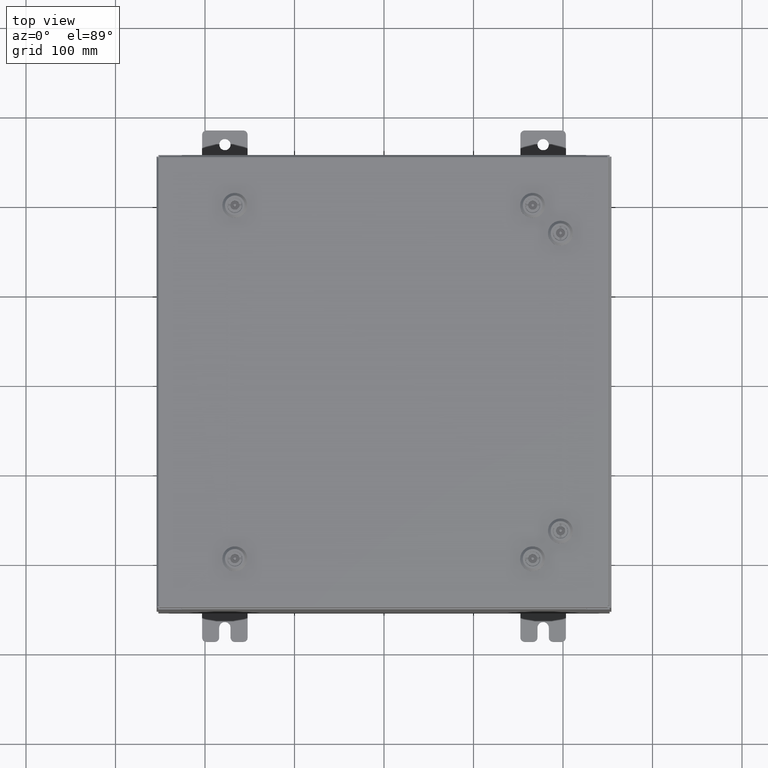
[diagram: clean part render]
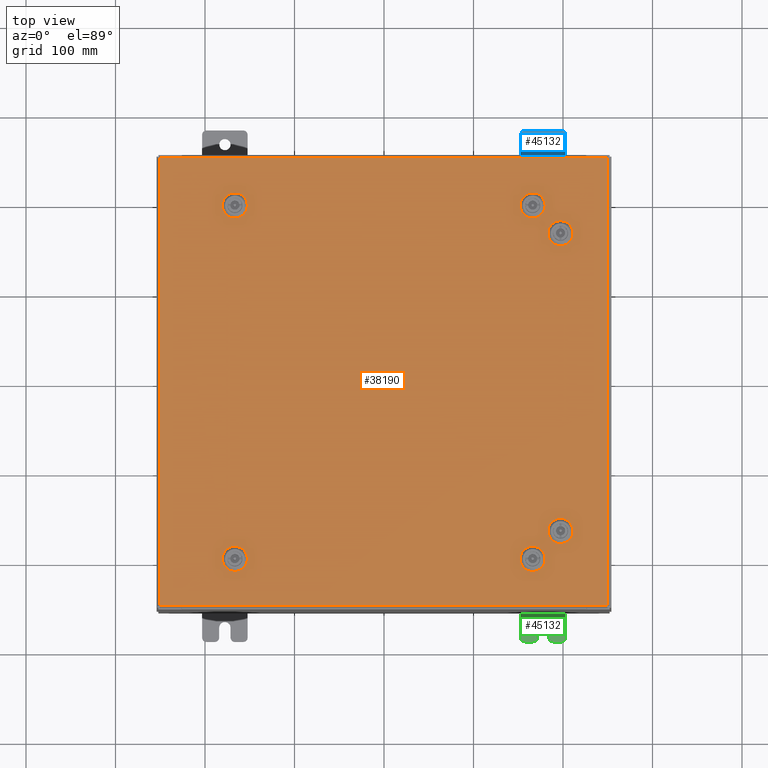
[diagram: same view with three faces highlighted in distinct colors, each labeled with its STEP entity id]
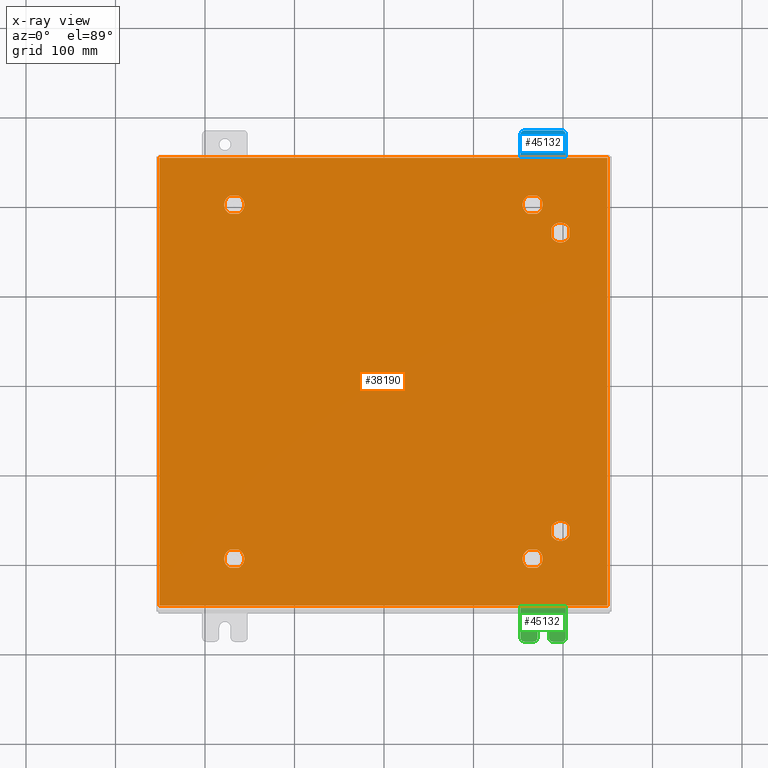
[diagram: x-ray of the same camera — body ghosted, the three highlighted faces saturated]
A machine part, top view with three faces highlighted in distinct colors.
The next image is the same camera in x-ray (body ghosted, the three faces saturated) — at least one of them is partly hidden behind the body in this view.
Their STEP definitions:

[orange] entity #38190 — the highlighted planar face has unit normal (0, 0, -1).
#312 = LINE ( 'NONE', #14345, #50911 ) ;
#433 = CARTESIAN_POINT ( 'NONE',  ( 7.392800000000014500, -6.761952375267901200, -2.443558770110843000E-013 ) ) ;
#515 = ORIENTED_EDGE ( 'NONE', *, *, #34514, .F. ) ;
#563 = VERTEX_POINT ( 'NONE', #23759 ) ;
#636 = CARTESIAN_POINT ( 'NONE',  ( -6.562499999999986700, 7.787799999999989200, 0.0000000000000000000 ) ) ;
#925 = AXIS2_PLACEMENT_3D ( 'NONE', #636, #34896, #5535 ) ;
#1241 = EDGE_CURVE ( 'NONE', #11794, #44368, #56490, .T. ) ;
#1665 = DIRECTION ( 'NONE',  ( 0.0000000000000000000, 0.0000000000000000000, 1.000000000000000000 ) ) ;
#1764 = DIRECTION ( 'NONE',  ( -1.000000000000000000, 0.0000000000000000000, 6.982962677686261200E-015 ) ) ;
#2525 = VERTEX_POINT ( 'NONE', #10235 ) ;
#2775 = DIRECTION ( 'NONE',  ( 0.0000000000000000000, 1.000000000000000000, 6.982962677686269100E-015 ) ) ;
#2948 = EDGE_CURVE ( 'NONE', #40379, #20756, #14958, .T. ) ;
#3531 = LINE ( 'NONE', #6863, #15046 ) ;
#3658 = VERTEX_POINT ( 'NONE', #38533 ) ;
#4139 = CARTESIAN_POINT ( 'NONE',  ( 8.182800000000003800, -6.363047624732128100, -2.415703400261412200E-013 ) ) ;
#4445 = AXIS2_PLACEMENT_3D ( 'NONE', #61533, #32100, #2775 ) ;
#4593 = DIRECTION ( 'NONE',  ( 1.000000000000000000, 0.0000000000000000000, 6.982962677686261200E-015 ) ) ;
#4703 = CARTESIAN_POINT ( 'NONE',  ( 6.562499999999985800, -7.787799999999989200, -2.326024867937287700E-014 ) ) ;
#4927 = ORIENTED_EDGE ( 'NONE', *, *, #11211, .F. ) ;
#5124 = DIRECTION ( 'NONE',  ( -6.982962677686266700E-015, -6.982962677686266700E-015, 1.000000000000000000 ) ) ;
#5531 = EDGE_CURVE ( 'NONE', #11279, #33296, #43894, .T. ) ;
#5535 = DIRECTION ( 'NONE',  ( 1.000000000000000000, 0.0000000000000000000, 0.0000000000000000000 ) ) ;
#5983 = CARTESIAN_POINT ( 'NONE',  ( 7.004999999999983900, -7.787799999999989200, -2.017028769449672300E-014 ) ) ;
#6052 = CARTESIAN_POINT ( 'NONE',  ( 8.182800000000000300, -6.761952375267896700, -2.443558770110843000E-013 ) ) ;
#6342 = VECTOR ( 'NONE', #50666, 39.37007874015748100 ) ;
#6559 = EDGE_CURVE ( 'NONE', #39794, #3658, #56918, .T. ) ;
#6639 = CARTESIAN_POINT ( 'NONE',  ( -6.119999999999989400, 7.787799999999989200, 0.0000000000000000000 ) ) ;
#6768 = DIRECTION ( 'NONE',  ( 0.0000000000000000000, 0.0000000000000000000, 1.000000000000000000 ) ) ;
#6863 = CARTESIAN_POINT ( 'NONE',  ( -6.363047624732095300, 8.182799999999980800, 0.0000000000000000000 ) ) ;
#6993 = DIRECTION ( 'NONE',  ( -1.000000000000000000, -2.739348669069625000E-015, -6.982962677686314800E-015 ) ) ;
#7228 = DIRECTION ( 'NONE',  ( -8.218046007208852600E-015, 1.000000000000000000, -0.0000000000000000000 ) ) ;
#7379 = VECTOR ( 'NONE', #18144, 39.37007874015748100 ) ;
#7712 = VERTEX_POINT ( 'NONE', #21927 ) ;
#7798 = VERTEX_POINT ( 'NONE', #52273 ) ;
#7856 = CARTESIAN_POINT ( 'NONE',  ( 6.761952375267867400, -8.182799999999986100, -2.462575044458744400E-014 ) ) ;
#7995 = CARTESIAN_POINT ( 'NONE',  ( 6.562499999999985800, 7.787799999999989200, -2.637953810749545800E-014 ) ) ;
#8351 = EDGE_CURVE ( 'NONE', #57647, #2525, #32832, .T. ) ;
#8514 = VECTOR ( 'NONE', #6993, 39.37007874015748100 ) ;
#8799 = FACE_OUTER_BOUND ( 'NONE', #46834, .T. ) ;
#8909 = ORIENTED_EDGE ( 'NONE', *, *, #53296, .F. ) ;
#9070 = CARTESIAN_POINT ( 'NONE',  ( 6.363047624732101500, -7.392799999999993200, -2.189474691415834200E-014 ) ) ;
#9369 = ORIENTED_EDGE ( 'NONE', *, *, #58613, .F. ) ;
#9435 = ORIENTED_EDGE ( 'NONE', *, *, #56630, .F. ) ;
#9652 = DIRECTION ( 'NONE',  ( 1.000000000000000000, 0.0000000000000000000, 6.982962677686260400E-015 ) ) ;
#9745 = CIRCLE ( 'NONE', #54666, 0.4424999999999972800 ) ;
#10018 = DIRECTION ( 'NONE',  ( 0.0000000000000000000, 0.0000000000000000000, -1.000000000000000000 ) ) ;
#10235 = CARTESIAN_POINT ( 'NONE',  ( 6.761952375267869200, 7.392799999999992300, -2.777230659996697100E-014 ) ) ;
#10356 = FACE_BOUND ( 'NONE', #49026, .T. ) ;
#10429 = AXIS2_PLACEMENT_3D ( 'NONE', #34463, #5124, #39413 ) ;
#10431 = EDGE_CURVE ( 'NONE', #55814, #53143, #52645, .T. ) ;
#10532 = ORIENTED_EDGE ( 'NONE', *, *, #40069, .F. ) ;
#10625 = CARTESIAN_POINT ( 'NONE',  ( 8.182800000000000300, 6.761952375267896700, 0.0000000000000000000 ) ) ;
#11211 = EDGE_CURVE ( 'NONE', #51958, #57829, #55720, .T. ) ;
#11279 = VERTEX_POINT ( 'NONE', #36217 ) ;
#11282 = CARTESIAN_POINT ( 'NONE',  ( -9.849799999999996600, -9.849800000000001900, -2.048885995248197400E-016 ) ) ;
#11295 = EDGE_CURVE ( 'NONE', #30780, #17029, #3531, .T. ) ;
#11411 = CIRCLE ( 'NONE', #42530, 0.4424999999999983400 ) ;
#11682 = DIRECTION ( 'NONE',  ( -0.0000000000000000000, -6.982962677686266700E-015, 1.000000000000000000 ) ) ;
#11794 = VERTEX_POINT ( 'NONE', #44520 ) ;
#12131 = DIRECTION ( 'NONE',  ( 1.000000000000000000, -0.0000000000000000000, -0.0000000000000000000 ) ) ;
#12914 = DIRECTION ( 'NONE',  ( -1.000000000000000000, 0.0000000000000000000, 6.982962677686260400E-015 ) ) ;
#14147 = VERTEX_POINT ( 'NONE', #29148 ) ;
#14149 = EDGE_CURVE ( 'NONE', #20756, #62928, #53292, .T. ) ;
#14345 = CARTESIAN_POINT ( 'NONE',  ( -9.849800000000001900, 9.849799999999996600, -2.441589144337435400E-015 ) ) ;
#14607 = AXIS2_PLACEMENT_3D ( 'NONE', #58661, #29247, #63579 ) ;
#14613 = DIRECTION ( 'NONE',  ( 0.0000000000000000000, 1.000000000000000000, 0.0000000000000000000 ) ) ;
#14958 = LINE ( 'NONE', #11282, #37932 ) ;
#15046 = VECTOR ( 'NONE', #46089, 39.37007874015748100 ) ;
#15791 = VECTOR ( 'NONE', #33704, 39.37007874015748100 ) ;
#15868 = AXIS2_PLACEMENT_3D ( 'NONE', #4703, #38974, #9652 ) ;
#15934 = CIRCLE ( 'NONE', #52567, 0.4424999999999983400 ) ;
#16446 = CIRCLE ( 'NONE', #14607, 0.4424999999999972800 ) ;
#16607 = DIRECTION ( 'NONE',  ( -1.000000000000000000, -1.369674334534793800E-014, 6.982962677686269100E-015 ) ) ;
#16842 = DIRECTION ( 'NONE',  ( 0.0000000000000000000, 1.000000000000000000, 6.982962677686287200E-015 ) ) ;
#17029 = VERTEX_POINT ( 'NONE', #55035 ) ;
#17062 = CARTESIAN_POINT ( 'NONE',  ( 6.363047624732101500, 7.392799999999993200, -2.498676961502394800E-014 ) ) ;
#17111 = CARTESIAN_POINT ( 'NONE',  ( -6.363047624732101500, 7.392799999999993200, 0.0000000000000000000 ) ) ;
#17128 = CARTESIAN_POINT ( 'NONE',  ( 8.182800000000000300, 6.761952375267896700, 0.0000000000000000000 ) ) ;
#17473 = ORIENTED_EDGE ( 'NONE', *, *, #48348, .F. ) ;
#17834 = VERTEX_POINT ( 'NONE', #61632 ) ;
#17894 = ORIENTED_EDGE ( 'NONE', *, *, #51928, .F. ) ;
#17922 = CARTESIAN_POINT ( 'NONE',  ( -6.562499999999986700, -7.787799999999991800, -4.963978678686834100E-014 ) ) ;
#18144 = DIRECTION ( 'NONE',  ( -1.000000000000000000, 2.739348669069610000E-015, 1.946424297521510000E-029 ) ) ;
#18161 = ORIENTED_EDGE ( 'NONE', *, *, #2948, .T. ) ;
#18621 = AXIS2_PLACEMENT_3D ( 'NONE', #58004, #28594, #62925 ) ;
#18724 = VERTEX_POINT ( 'NONE', #54956 ) ;
#18742 = CARTESIAN_POINT ( 'NONE',  ( -6.562499999999986700, -7.787799999999991800, -4.963978678686834100E-014 ) ) ;
#19216 = CIRCLE ( 'NONE', #4445, 0.4424999999999972800 ) ;
#19508 = AXIS2_PLACEMENT_3D ( 'NONE', #36117, #6768, #41035 ) ;
#19522 = EDGE_CURVE ( 'NONE', #21173, #49059, #48373, .T. ) ;
#19819 = EDGE_LOOP ( 'NONE', ( #30237, #22624, #44133, #37982, #58016 ) ) ;
#19850 = VECTOR ( 'NONE', #51290, 39.37007874015748100 ) ;
#19917 = EDGE_LOOP ( 'NONE', ( #8909, #515, #55758, #25034, #35797 ) ) ;
#20017 = DIRECTION ( 'NONE',  ( -0.0000000000000000000, -6.982962677686266700E-015, 1.000000000000000000 ) ) ;
#20756 = VERTEX_POINT ( 'NONE', #61468 ) ;
#21173 = VERTEX_POINT ( 'NONE', #5983 ) ;
#21927 = CARTESIAN_POINT ( 'NONE',  ( 7.392800000000010000, -6.363047624732128100, 0.0000000000000000000 ) ) ;
#22018 = CARTESIAN_POINT ( 'NONE',  ( -9.849799999999996600, -9.849800000000001900, -2.048885995248197400E-016 ) ) ;
#22206 = LINE ( 'NONE', #54225, #55130 ) ;
#22402 = CARTESIAN_POINT ( 'NONE',  ( 7.787800000000006100, -6.562500000000010700, -2.429631085186127400E-013 ) ) ;
#22566 = ORIENTED_EDGE ( 'NONE', *, *, #19522, .F. ) ;
#22624 = ORIENTED_EDGE ( 'NONE', *, *, #56620, .F. ) ;
#22686 = VERTEX_POINT ( 'NONE', #6639 ) ;
#22832 = DIRECTION ( 'NONE',  ( 0.0000000000000000000, 1.000000000000000000, 6.982962677686269100E-015 ) ) ;
#23242 = CIRCLE ( 'NONE', #47101, 0.4424999999999972800 ) ;
#23336 = ORIENTED_EDGE ( 'NONE', *, *, #39672, .F. ) ;
#23398 = FACE_BOUND ( 'NONE', #19917, .T. ) ;
#23660 = DIRECTION ( 'NONE',  ( 0.0000000000000000000, 1.000000000000000000, 6.982962677686270700E-015 ) ) ;
#23759 = CARTESIAN_POINT ( 'NONE',  ( -9.849800000000001900, 9.849799999999996600, -2.441589144337435400E-015 ) ) ;
#23769 = CARTESIAN_POINT ( 'NONE',  ( 9.849799999999994800, 9.849799999999996600, -2.048885995248197400E-016 ) ) ;
#23882 = DIRECTION ( 'NONE',  ( 0.0000000000000000000, 0.0000000000000000000, 1.000000000000000000 ) ) ;
#25034 = ORIENTED_EDGE ( 'NONE', *, *, #8351, .F. ) ;
#25181 = AXIS2_PLACEMENT_3D ( 'NONE', #63342, #33934, #4593 ) ;
#25502 = EDGE_LOOP ( 'NONE', ( #9369, #55382, #46212, #37933 ) ) ;
#25791 = EDGE_CURVE ( 'NONE', #563, #40379, #312, .T. ) ;
#25939 = CARTESIAN_POINT ( 'NONE',  ( 6.363047624732094400, -8.182799999999980800, -2.741128742953046100E-014 ) ) ;
#26159 = CARTESIAN_POINT ( 'NONE',  ( 6.363047624732101500, 7.392799999999993200, -2.498676961502394800E-014 ) ) ;
#26239 = CARTESIAN_POINT ( 'NONE',  ( 7.392800000000008300, 6.363047624732128100, 0.0000000000000000000 ) ) ;
#26488 = FACE_BOUND ( 'NONE', #41420, .T. ) ;
#26629 = VECTOR ( 'NONE', #58345, 39.37007874015748100 ) ;
#27404 = VECTOR ( 'NONE', #54093, 39.37007874015748100 ) ;
#28254 = VERTEX_POINT ( 'NONE', #38739 ) ;
#28332 = LINE ( 'NONE', #60955, #51382 ) ;
#28594 = DIRECTION ( 'NONE',  ( 6.982962677686266700E-015, -0.0000000000000000000, 1.000000000000000000 ) ) ;
#29148 = CARTESIAN_POINT ( 'NONE',  ( 6.761952375267867400, 8.182799999999986100, 0.0000000000000000000 ) ) ;
#29247 = DIRECTION ( 'NONE',  ( 0.0000000000000000000, 0.0000000000000000000, 1.000000000000000000 ) ) ;
#29473 = CARTESIAN_POINT ( 'NONE',  ( 0.0000000000000000000, 0.0000000000000000000, 0.0000000000000000000 ) ) ;
#30220 = CARTESIAN_POINT ( 'NONE',  ( -6.363047624732101500, 7.392799999999993200, 0.0000000000000000000 ) ) ;
#30237 = ORIENTED_EDGE ( 'NONE', *, *, #10431, .F. ) ;
#30313 = CIRCLE ( 'NONE', #25181, 0.4424999999999983400 ) ;
#30780 = VERTEX_POINT ( 'NONE', #34956 ) ;
#30969 = CARTESIAN_POINT ( 'NONE',  ( -6.562499999999986700, 7.787799999999989200, 0.0000000000000000000 ) ) ;
#31063 = DIRECTION ( 'NONE',  ( 6.982962677686266700E-015, -0.0000000000000000000, 1.000000000000000000 ) ) ;
#31129 = CIRCLE ( 'NONE', #60903, 0.4424999999999983400 ) ;
#31857 = ORIENTED_EDGE ( 'NONE', *, *, #1241, .F. ) ;
#31917 = VECTOR ( 'NONE', #7228, 39.37007874015748100 ) ;
#32100 = DIRECTION ( 'NONE',  ( -0.0000000000000000000, -6.982962677686266700E-015, 1.000000000000000000 ) ) ;
#32832 = LINE ( 'NONE', #17062, #19850 ) ;
#33296 = VERTEX_POINT ( 'NONE', #17111 ) ;
#33381 = CIRCLE ( 'NONE', #18621, 0.4424999999999983400 ) ;
#33704 = DIRECTION ( 'NONE',  ( 1.095739467627835000E-014, -1.000000000000000000, -6.982962677686248600E-015 ) ) ;
#33847 = CARTESIAN_POINT ( 'NONE',  ( -6.363047624732095300, -8.182799999999984300, -5.239805704455435800E-014 ) ) ;
#33934 = DIRECTION ( 'NONE',  ( -6.982962677686266700E-015, -6.982962677686266700E-015, 1.000000000000000000 ) ) ;
#34211 = ORIENTED_EDGE ( 'NONE', *, *, #41305, .F. ) ;
#34463 = CARTESIAN_POINT ( 'NONE',  ( 6.562499999999985800, -7.787799999999989200, -2.326024867937287700E-014 ) ) ;
#34514 = EDGE_CURVE ( 'NONE', #7798, #14147, #11411, .T. ) ;
#34549 = CIRCLE ( 'NONE', #19508, 0.4424999999999983400 ) ;
#34870 = FACE_BOUND ( 'NONE', #57530, .T. ) ;
#34896 = DIRECTION ( 'NONE',  ( 0.0000000000000000000, 0.0000000000000000000, 1.000000000000000000 ) ) ;
#34945 = VECTOR ( 'NONE', #35417, 39.37007874015748100 ) ;
#34956 = CARTESIAN_POINT ( 'NONE',  ( -6.363047624732095300, 8.182799999999980800, 0.0000000000000000000 ) ) ;
#35293 = VERTEX_POINT ( 'NONE', #26239 ) ;
#35417 = DIRECTION ( 'NONE',  ( 8.218046007208852600E-015, 1.000000000000000000, 6.982962677686325100E-015 ) ) ;
#35797 = ORIENTED_EDGE ( 'NONE', *, *, #56971, .F. ) ;
#35808 = AXIS2_PLACEMENT_3D ( 'NONE', #22402, #11682, #16842 ) ;
#35918 = DIRECTION ( 'NONE',  ( 1.000000000000000000, 0.0000000000000000000, 0.0000000000000000000 ) ) ;
#36117 = CARTESIAN_POINT ( 'NONE',  ( 7.787800000000005200, 6.562500000000010700, 0.0000000000000000000 ) ) ;
#36217 = CARTESIAN_POINT ( 'NONE',  ( -6.761952375267871900, 7.392799999999992300, 0.0000000000000000000 ) ) ;
#37838 = AXIS2_PLACEMENT_3D ( 'NONE', #53211, #23882, #58170 ) ;
#37932 = VECTOR ( 'NONE', #12131, 39.37007874015748100 ) ;
#37933 = ORIENTED_EDGE ( 'NONE', *, *, #6559, .F. ) ;
#37982 = ORIENTED_EDGE ( 'NONE', *, *, #43901, .F. ) ;
#38190 = ADVANCED_FACE ( 'NONE', ( #61009, #34870, #26488, #47900, #23398, #10356, #8799 ), #39344, .F. ) ;
#38438 = CARTESIAN_POINT ( 'NONE',  ( 7.392800000000014500, -6.761952375267901200, -2.443558770110843000E-013 ) ) ;
#38533 = CARTESIAN_POINT ( 'NONE',  ( 8.182800000000000300, -6.761952375267896700, -2.443558770110843000E-013 ) ) ;
#38739 = CARTESIAN_POINT ( 'NONE',  ( -6.363047624732101500, -7.392799999999995800, -4.688151652918229300E-014 ) ) ;
#38853 = VERTEX_POINT ( 'NONE', #9070 ) ;
#38974 = DIRECTION ( 'NONE',  ( -6.982962677686266700E-015, -6.982962677686266700E-015, 1.000000000000000000 ) ) ;
#39344 = PLANE ( 'NONE',  #53554 ) ;
#39413 = DIRECTION ( 'NONE',  ( 1.000000000000000000, 0.0000000000000000000, 6.982962677686261200E-015 ) ) ;
#39672 = EDGE_CURVE ( 'NONE', #38853, #51958, #51684, .T. ) ;
#39794 = VERTEX_POINT ( 'NONE', #433 ) ;
#40069 = EDGE_CURVE ( 'NONE', #22686, #30780, #16446, .T. ) ;
#40170 = CARTESIAN_POINT ( 'NONE',  ( 7.392800000000011800, 6.761952375267901200, 0.0000000000000000000 ) ) ;
#40252 = VECTOR ( 'NONE', #14613, 39.37007874015748100 ) ;
#40379 = VERTEX_POINT ( 'NONE', #22018 ) ;
#41035 = DIRECTION ( 'NONE',  ( 1.000000000000000000, 0.0000000000000000000, 0.0000000000000000000 ) ) ;
#41246 = CARTESIAN_POINT ( 'NONE',  ( 6.363047624732101500, -7.392799999999993200, -2.189474691415834200E-014 ) ) ;
#41305 = EDGE_CURVE ( 'NONE', #33296, #22686, #23242, .T. ) ;
#41420 = EDGE_LOOP ( 'NONE', ( #57780, #22566, #53951, #4927, #23336 ) ) ;
#41694 = VERTEX_POINT ( 'NONE', #4139 ) ;
#41971 = CIRCLE ( 'NONE', #55919, 0.4424999999999972800 ) ;
#42268 = DIRECTION ( 'NONE',  ( 6.982962677686266700E-015, -0.0000000000000000000, 1.000000000000000000 ) ) ;
#42530 = AXIS2_PLACEMENT_3D ( 'NONE', #60481, #31063, #1764 ) ;
#42648 = VECTOR ( 'NONE', #60251, 39.37007874015748100 ) ;
#42843 = ORIENTED_EDGE ( 'NONE', *, *, #45948, .T. ) ;
#43894 = LINE ( 'NONE', #30220, #6342 ) ;
#43901 = EDGE_CURVE ( 'NONE', #17834, #28254, #19216, .T. ) ;
#43952 = CARTESIAN_POINT ( 'NONE',  ( 9.849799999999996600, -9.849800000000001900, -2.048885995248197400E-016 ) ) ;
#44133 = ORIENTED_EDGE ( 'NONE', *, *, #58396, .F. ) ;
#44149 = CIRCLE ( 'NONE', #37838, 0.4424999999999972800 ) ;
#44262 = DIRECTION ( 'NONE',  ( -1.000000000000000000, 0.0000000000000000000, -0.0000000000000000000 ) ) ;
#44368 = VERTEX_POINT ( 'NONE', #10625 ) ;
#44422 = VERTEX_POINT ( 'NONE', #40170 ) ;
#44520 = CARTESIAN_POINT ( 'NONE',  ( 8.182800000000003800, 6.363047624732128100, 0.0000000000000000000 ) ) ;
#45948 = EDGE_CURVE ( 'NONE', #62928, #563, #22206, .T. ) ;
#46089 = DIRECTION ( 'NONE',  ( -1.000000000000000000, 1.369674334534793800E-014, 0.0000000000000000000 ) ) ;
#46109 = LINE ( 'NONE', #41246, #8514 ) ;
#46212 = ORIENTED_EDGE ( 'NONE', *, *, #58338, .F. ) ;
#46834 = EDGE_LOOP ( 'NONE', ( #18161, #51890, #42843, #62856 ) ) ;
#47101 = AXIS2_PLACEMENT_3D ( 'NONE', #30969, #1665, #35918 ) ;
#47474 = CARTESIAN_POINT ( 'NONE',  ( -6.363047624732101500, -7.392799999999995800, -4.688151652918229300E-014 ) ) ;
#47900 = FACE_BOUND ( 'NONE', #19819, .T. ) ;
#48348 = EDGE_CURVE ( 'NONE', #17029, #11279, #58831, .T. ) ;
#48373 = CIRCLE ( 'NONE', #10429, 0.4424999999999983400 ) ;
#49026 = EDGE_LOOP ( 'NONE', ( #58083, #17473, #56481, #10532, #34211 ) ) ;
#49059 = VERTEX_POINT ( 'NONE', #59218 ) ;
#49142 = CARTESIAN_POINT ( 'NONE',  ( 7.392800000000011800, 6.761952375267901200, 0.0000000000000000000 ) ) ;
#49332 = CARTESIAN_POINT ( 'NONE',  ( 7.787800000000006100, -6.562500000000010700, -2.429631085186127400E-013 ) ) ;
#50666 = DIRECTION ( 'NONE',  ( 1.000000000000000000, 2.739348669069610000E-015, -0.0000000000000000000 ) ) ;
#50874 = CARTESIAN_POINT ( 'NONE',  ( -6.761952375267868300, -8.182799999999989600, 0.0000000000000000000 ) ) ;
#50911 = VECTOR ( 'NONE', #58505, 39.37007874015748100 ) ;
#51290 = DIRECTION ( 'NONE',  ( 1.000000000000000000, -2.739348669069625000E-015, -6.982962677686286400E-015 ) ) ;
#51382 = VECTOR ( 'NONE', #16607, 39.37007874015748100 ) ;
#51684 = CIRCLE ( 'NONE', #15868, 0.4424999999999972800 ) ;
#51890 = ORIENTED_EDGE ( 'NONE', *, *, #14149, .T. ) ;
#51928 = EDGE_CURVE ( 'NONE', #35293, #11794, #34549, .T. ) ;
#51958 = VERTEX_POINT ( 'NONE', #55854 ) ;
#51973 = EDGE_CURVE ( 'NONE', #49059, #38853, #46109, .T. ) ;
#52146 = DIRECTION ( 'NONE',  ( -0.0000000000000000000, -6.982962677686266700E-015, 1.000000000000000000 ) ) ;
#52273 = CARTESIAN_POINT ( 'NONE',  ( 7.004999999999983900, 7.787799999999989200, -2.946949909237161900E-014 ) ) ;
#52567 = AXIS2_PLACEMENT_3D ( 'NONE', #18742, #52997, #23660 ) ;
#52645 = LINE ( 'NONE', #33847, #26629 ) ;
#52997 = DIRECTION ( 'NONE',  ( -0.0000000000000000000, -6.982962677686266700E-015, 1.000000000000000000 ) ) ;
#53143 = VERTEX_POINT ( 'NONE', #59865 ) ;
#53211 = CARTESIAN_POINT ( 'NONE',  ( 7.787800000000005200, 6.562500000000010700, 0.0000000000000000000 ) ) ;
#53292 = LINE ( 'NONE', #43952, #40252 ) ;
#53296 = EDGE_CURVE ( 'NONE', #14147, #62266, #28332, .T. ) ;
#53443 = LINE ( 'NONE', #49142, #27404 ) ;
#53554 = AXIS2_PLACEMENT_3D ( 'NONE', #29473, #10018, #44262 ) ;
#53951 = ORIENTED_EDGE ( 'NONE', *, *, #60097, .F. ) ;
#54093 = DIRECTION ( 'NONE',  ( -8.218046007208762600E-015, -1.000000000000000000, 0.0000000000000000000 ) ) ;
#54225 = CARTESIAN_POINT ( 'NONE',  ( 9.849799999999994800, 9.849799999999996600, -2.048885995248197400E-016 ) ) ;
#54284 = DIRECTION ( 'NONE',  ( 0.0000000000000000000, 1.000000000000000000, 6.982962677686270700E-015 ) ) ;
#54666 = AXIS2_PLACEMENT_3D ( 'NONE', #7995, #42268, #12914 ) ;
#54897 = LINE ( 'NONE', #38438, #15791 ) ;
#54956 = CARTESIAN_POINT ( 'NONE',  ( -6.761952375267871900, -7.392799999999994000, -4.688151652918228700E-014 ) ) ;
#55035 = CARTESIAN_POINT ( 'NONE',  ( -6.761952375267868300, 8.182799999999986100, 0.0000000000000000000 ) ) ;
#55130 = VECTOR ( 'NONE', #59179, 39.37007874015748100 ) ;
#55382 = ORIENTED_EDGE ( 'NONE', *, *, #58147, .F. ) ;
#55720 = LINE ( 'NONE', #25939, #42648 ) ;
#55758 = ORIENTED_EDGE ( 'NONE', *, *, #60003, .F. ) ;
#55814 = VERTEX_POINT ( 'NONE', #50874 ) ;
#55854 = CARTESIAN_POINT ( 'NONE',  ( 6.363047624732094400, -8.182799999999980800, -2.741128742953046100E-014 ) ) ;
#55919 = AXIS2_PLACEMENT_3D ( 'NONE', #17922, #52146, #22832 ) ;
#56481 = ORIENTED_EDGE ( 'NONE', *, *, #11295, .F. ) ;
#56490 = LINE ( 'NONE', #17128, #31917 ) ;
#56601 = EDGE_CURVE ( 'NONE', #53143, #17834, #41971, .T. ) ;
#56620 = EDGE_CURVE ( 'NONE', #18724, #55814, #15934, .T. ) ;
#56630 = EDGE_CURVE ( 'NONE', #44422, #35293, #53443, .T. ) ;
#56918 = CIRCLE ( 'NONE', #35808, 0.4424999999999972800 ) ;
#56971 = EDGE_CURVE ( 'NONE', #62266, #57647, #9745, .T. ) ;
#57157 = ORIENTED_EDGE ( 'NONE', *, *, #58019, .F. ) ;
#57262 = CARTESIAN_POINT ( 'NONE',  ( 6.363047624732094400, 8.182799999999980800, -2.498676961502389700E-014 ) ) ;
#57530 = EDGE_LOOP ( 'NONE', ( #31857, #17894, #9435, #57157 ) ) ;
#57647 = VERTEX_POINT ( 'NONE', #26159 ) ;
#57780 = ORIENTED_EDGE ( 'NONE', *, *, #51973, .F. ) ;
#57829 = VERTEX_POINT ( 'NONE', #7856 ) ;
#58004 = CARTESIAN_POINT ( 'NONE',  ( 6.562499999999985800, 7.787799999999989200, -2.637953810749545800E-014 ) ) ;
#58016 = ORIENTED_EDGE ( 'NONE', *, *, #56601, .F. ) ;
#58019 = EDGE_CURVE ( 'NONE', #44368, #44422, #44149, .T. ) ;
#58083 = ORIENTED_EDGE ( 'NONE', *, *, #5531, .F. ) ;
#58147 = EDGE_CURVE ( 'NONE', #41694, #7712, #31129, .T. ) ;
#58170 = DIRECTION ( 'NONE',  ( 1.000000000000000000, 0.0000000000000000000, 0.0000000000000000000 ) ) ;
#58338 = EDGE_CURVE ( 'NONE', #3658, #41694, #61081, .T. ) ;
#58345 = DIRECTION ( 'NONE',  ( 1.000000000000000000, 1.369674334534793800E-014, 9.732121487607470400E-029 ) ) ;
#58396 = EDGE_CURVE ( 'NONE', #28254, #18724, #59503, .T. ) ;
#58505 = DIRECTION ( 'NONE',  ( 0.0000000000000000000, -1.000000000000000000, 0.0000000000000000000 ) ) ;
#58613 = EDGE_CURVE ( 'NONE', #7712, #39794, #54897, .T. ) ;
#58661 = CARTESIAN_POINT ( 'NONE',  ( -6.562499999999986700, 7.787799999999989200, 0.0000000000000000000 ) ) ;
#58831 = CIRCLE ( 'NONE', #925, 0.4424999999999983400 ) ;
#59179 = DIRECTION ( 'NONE',  ( -1.000000000000000000, -0.0000000000000000000, -0.0000000000000000000 ) ) ;
#59218 = CARTESIAN_POINT ( 'NONE',  ( 6.761952375267869200, -7.392799999999992300, 0.0000000000000000000 ) ) ;
#59503 = LINE ( 'NONE', #47474, #7379 ) ;
#59865 = CARTESIAN_POINT ( 'NONE',  ( -6.363047624732095300, -8.182799999999984300, -5.239805704455435800E-014 ) ) ;
#60003 = EDGE_CURVE ( 'NONE', #2525, #7798, #33381, .T. ) ;
#60097 = EDGE_CURVE ( 'NONE', #57829, #21173, #30313, .T. ) ;
#60251 = DIRECTION ( 'NONE',  ( 1.000000000000000000, -1.369674334534793800E-014, 6.982962677686171300E-015 ) ) ;
#60481 = CARTESIAN_POINT ( 'NONE',  ( 6.562499999999985800, 7.787799999999989200, -2.637953810749545800E-014 ) ) ;
#60903 = AXIS2_PLACEMENT_3D ( 'NONE', #49332, #20017, #54284 ) ;
#60955 = CARTESIAN_POINT ( 'NONE',  ( 6.363047624732094400, 8.182799999999980800, -2.498676961502389700E-014 ) ) ;
#61009 = FACE_BOUND ( 'NONE', #25502, .T. ) ;
#61081 = LINE ( 'NONE', #6052, #34945 ) ;
#61468 = CARTESIAN_POINT ( 'NONE',  ( 9.849799999999996600, -9.849800000000001900, -2.048885995248197400E-016 ) ) ;
#61533 = CARTESIAN_POINT ( 'NONE',  ( -6.562499999999986700, -7.787799999999991800, -4.963978678686834100E-014 ) ) ;
#61632 = CARTESIAN_POINT ( 'NONE',  ( -6.119999999999989400, -7.787799999999991800, -4.963978678686834100E-014 ) ) ;
#62266 = VERTEX_POINT ( 'NONE', #57262 ) ;
#62856 = ORIENTED_EDGE ( 'NONE', *, *, #25791, .T. ) ;
#62925 = DIRECTION ( 'NONE',  ( -1.000000000000000000, 0.0000000000000000000, 6.982962677686261200E-015 ) ) ;
#62928 = VERTEX_POINT ( 'NONE', #23769 ) ;
#63342 = CARTESIAN_POINT ( 'NONE',  ( 6.562499999999985800, -7.787799999999989200, -2.326024867937287700E-014 ) ) ;
#63579 = DIRECTION ( 'NONE',  ( 1.000000000000000000, 0.0000000000000000000, 0.0000000000000000000 ) ) ;

[blue] entity #45132 — the highlighted planar face has unit normal (0, 0, 1).
#582 = LINE ( 'NONE', #5684, #26680 ) ;
#660 = ORIENTED_EDGE ( 'NONE', *, *, #15933, .F. ) ;
#927 = DIRECTION ( 'NONE',  ( 1.000000000000000000, 0.0000000000000000000, -0.0000000000000000000 ) ) ;
#1591 = VERTEX_POINT ( 'NONE', #61187 ) ;
#2158 = DIRECTION ( 'NONE',  ( 6.556435184794182400E-016, 1.000000000000000000, 0.0000000000000000000 ) ) ;
#2736 = EDGE_CURVE ( 'NONE', #20358, #1591, #57156, .T. ) ;
#3084 = EDGE_CURVE ( 'NONE', #11941, #46526, #61002, .T. ) ;
#3750 = ORIENTED_EDGE ( 'NONE', *, *, #44760, .T. ) ;
#4187 = EDGE_CURVE ( 'NONE', #36219, #38342, #30176, .T. ) ;
#4379 = CARTESIAN_POINT ( 'NONE',  ( 0.0000000000000000000, 1.249999999999994200, -1.000000000000010400 ) ) ;
#5429 = VERTEX_POINT ( 'NONE', #19488 ) ;
#5609 = CARTESIAN_POINT ( 'NONE',  ( 0.0000000000000000000, 0.0000000000000000000, 0.0000000000000000000 ) ) ;
#5684 = CARTESIAN_POINT ( 'NONE',  ( 4.780733988912460100E-016, -0.6249999999999993300, -0.2499999999999993900 ) ) ;
#5870 = CARTESIAN_POINT ( 'NONE',  ( 0.0000000000000000000, -1.250000000000003100, 0.4400000000000020000 ) ) ;
#6497 = DIRECTION ( 'NONE',  ( 1.000000000000000000, 0.0000000000000000000, -0.0000000000000000000 ) ) ;
#6809 = EDGE_CURVE ( 'NONE', #56834, #23097, #23786, .T. ) ;
#6860 = ORIENTED_EDGE ( 'NONE', *, *, #30997, .T. ) ;
#7862 = CARTESIAN_POINT ( 'NONE',  ( 0.0000000000000000000, -1.060000000000004100, -0.8100000000000050500 ) ) ;
#8036 = CARTESIAN_POINT ( 'NONE',  ( 4.039428427013647300E-016, 0.6249999999999992200, -9.783840404509077400E-018 ) ) ;
#8287 = AXIS2_PLACEMENT_3D ( 'NONE', #56460, #27102, #61410 ) ;
#9186 = VECTOR ( 'NONE', #22828, 39.37007874015748100 ) ;
#10315 = DIRECTION ( 'NONE',  ( 1.000000000000000000, 0.0000000000000000000, -0.0000000000000000000 ) ) ;
#10815 = CARTESIAN_POINT ( 'NONE',  ( 4.039428427013647300E-016, 0.6249999999999992200, -9.783840404509077400E-018 ) ) ;
#10928 = LINE ( 'NONE', #13450, #36994 ) ;
#11026 = CIRCLE ( 'NONE', #54267, 0.1900000000000011100 ) ;
#11368 = LINE ( 'NONE', #44679, #50445 ) ;
#11519 = VECTOR ( 'NONE', #32149, 39.37007874015748100 ) ;
#11557 = VERTEX_POINT ( 'NONE', #42396 ) ;
#11941 = VERTEX_POINT ( 'NONE', #12392 ) ;
#12392 = CARTESIAN_POINT ( 'NONE',  ( 4.168508244714285900E-016, 0.6249999999999992200, 0.2499999999999999200 ) ) ;
#12800 = AXIS2_PLACEMENT_3D ( 'NONE', #10815, #45069, #15764 ) ;
#13167 = AXIS2_PLACEMENT_3D ( 'NONE', #26065, #60374, #30958 ) ;
#13450 = CARTESIAN_POINT ( 'NONE',  ( 0.0000000000000000000, 1.249999999999997600, 0.9999999999999951200 ) ) ;
#14051 = DIRECTION ( 'NONE',  ( 0.0000000000000000000, 1.639108796198553600E-015, 1.000000000000000000 ) ) ;
#14120 = CARTESIAN_POINT ( 'NONE',  ( 0.0000000000000000000, -1.060000000000001200, 0.9999999999999988900 ) ) ;
#14599 = CARTESIAN_POINT ( 'NONE',  ( 0.0000000000000000000, 1.249999999999994700, -0.8100000000000092700 ) ) ;
#14879 = AXIS2_PLACEMENT_3D ( 'NONE', #14913, #34605, #39544 ) ;
#14913 = CARTESIAN_POINT ( 'NONE',  ( 0.0000000000000000000, -1.060000000000003400, -0.4400000000000005000 ) ) ;
#15340 = DIRECTION ( 'NONE',  ( 0.0000000000000000000, -1.639108796198553600E-015, -1.000000000000000000 ) ) ;
#15764 = DIRECTION ( 'NONE',  ( -5.163192708025533800E-017, 0.0000000000000000000, -1.000000000000000000 ) ) ;
#15933 = EDGE_CURVE ( 'NONE', #46526, #11941, #26413, .T. ) ;
#15976 = CARTESIAN_POINT ( 'NONE',  ( 1.928684683526964400E-016, -1.060000000000003400, -0.2499999999999994400 ) ) ;
#16119 = FACE_OUTER_BOUND ( 'NONE', #53799, .T. ) ;
#16210 = EDGE_CURVE ( 'NONE', #60360, #5429, #34791, .T. ) ;
#16421 = CIRCLE ( 'NONE', #39884, 0.1900000000000011100 ) ;
#16581 = EDGE_CURVE ( 'NONE', #38342, #11557, #11026, .T. ) ;
#16854 = EDGE_CURVE ( 'NONE', #51728, #36219, #16421, .T. ) ;
#17915 = CARTESIAN_POINT ( 'NONE',  ( 0.0000000000000000000, -1.250000000000005600, -1.000000000000006200 ) ) ;
#19150 = ORIENTED_EDGE ( 'NONE', *, *, #56288, .T. ) ;
#19452 = CARTESIAN_POINT ( 'NONE',  ( 0.0000000000000000000, -1.250000000000004700, -0.4400000000000002200 ) ) ;
#19488 = CARTESIAN_POINT ( 'NONE',  ( 1.928684683526972300E-016, -1.060000000000002100, 0.2500000000000005000 ) ) ;
#19547 = AXIS2_PLACEMENT_3D ( 'NONE', #35854, #6497, #40785 ) ;
#20358 = VERTEX_POINT ( 'NONE', #29693 ) ;
#21820 = EDGE_CURVE ( 'NONE', #28222, #43765, #55787, .T. ) ;
#22828 = DIRECTION ( 'NONE',  ( 0.0000000000000000000, 1.000000000000000000, -1.639108796198558100E-015 ) ) ;
#23097 = VERTEX_POINT ( 'NONE', #19452 ) ;
#23760 = ORIENTED_EDGE ( 'NONE', *, *, #4187, .T. ) ;
#23786 = CIRCLE ( 'NONE', #14879, 0.1900000000000011100 ) ;
#23807 = AXIS2_PLACEMENT_3D ( 'NONE', #8036, #29386, #30822 ) ;
#23826 = DIRECTION ( 'NONE',  ( 1.000000000000000000, 0.0000000000000000000, -0.0000000000000000000 ) ) ;
#26065 = CARTESIAN_POINT ( 'NONE',  ( 4.780733988912460100E-016, -0.6249999999999993300, 5.858939755051854500E-017 ) ) ;
#26413 = CIRCLE ( 'NONE', #12800, 0.2499999999999999200 ) ;
#26680 = VECTOR ( 'NONE', #30102, 39.37007874015748100 ) ;
#27102 = DIRECTION ( 'NONE',  ( 1.000000000000000000, 0.0000000000000000000, -0.0000000000000000000 ) ) ;
#28222 = VERTEX_POINT ( 'NONE', #14120 ) ;
#28280 = ORIENTED_EDGE ( 'NONE', *, *, #41793, .T. ) ;
#28463 = LINE ( 'NONE', #36423, #54566 ) ;
#28636 = VECTOR ( 'NONE', #14051, 39.37007874015748100 ) ;
#29386 = DIRECTION ( 'NONE',  ( 1.000000000000000000, -0.0000000000000000000, -5.163192708025532000E-017 ) ) ;
#29693 = CARTESIAN_POINT ( 'NONE',  ( 0.0000000000000000000, -1.250000000000005300, -0.8100000000000047200 ) ) ;
#30102 = DIRECTION ( 'NONE',  ( -6.556435184794182400E-016, -1.000000000000000000, -1.639108796198545600E-016 ) ) ;
#30176 = LINE ( 'NONE', #4379, #28636 ) ;
#30238 = PLANE ( 'NONE',  #40216 ) ;
#30661 = CARTESIAN_POINT ( 'NONE',  ( 3.910348609313009100E-016, 0.6249999999999992200, -0.2499999999999999200 ) ) ;
#30822 = DIRECTION ( 'NONE',  ( -5.163192708025533800E-017, 0.0000000000000000000, -1.000000000000000000 ) ) ;
#30954 = EDGE_LOOP ( 'NONE', ( #660, #31374 ) ) ;
#30958 = DIRECTION ( 'NONE',  ( -6.523827964459551700E-016, -1.000000000000000000, 0.0000000000000000000 ) ) ;
#30997 = EDGE_CURVE ( 'NONE', #43765, #60360, #61504, .T. ) ;
#31374 = ORIENTED_EDGE ( 'NONE', *, *, #3084, .F. ) ;
#32149 = DIRECTION ( 'NONE',  ( 0.0000000000000000000, -1.639108796198553600E-015, -1.000000000000000000 ) ) ;
#32444 = CARTESIAN_POINT ( 'NONE',  ( 4.780733988912460100E-016, -0.6249999999999993300, -0.2499999999999998600 ) ) ;
#32860 = VERTEX_POINT ( 'NONE', #35249 ) ;
#34605 = DIRECTION ( 'NONE',  ( 1.000000000000000000, 0.0000000000000000000, -0.0000000000000000000 ) ) ;
#34791 = CIRCLE ( 'NONE', #8287, 0.1900000000000011400 ) ;
#35178 = DIRECTION ( 'NONE',  ( -0.0000000000000000000, 0.0000000000000000000, -1.000000000000000000 ) ) ;
#35249 = CARTESIAN_POINT ( 'NONE',  ( 0.0000000000000000000, -0.6249999999999992200, 0.2500000000000005000 ) ) ;
#35854 = CARTESIAN_POINT ( 'NONE',  ( 0.0000000000000000000, -1.060000000000001600, 0.8099999999999978300 ) ) ;
#35997 = ORIENTED_EDGE ( 'NONE', *, *, #56212, .T. ) ;
#36201 = CARTESIAN_POINT ( 'NONE',  ( 0.0000000000000000000, -1.250000000000002400, 0.8099999999999980500 ) ) ;
#36219 = VERTEX_POINT ( 'NONE', #14599 ) ;
#36423 = CARTESIAN_POINT ( 'NONE',  ( 6.829619984160658000E-017, -1.250000000000003800, 0.2500000000000005000 ) ) ;
#36994 = VECTOR ( 'NONE', #47726, 39.37007874015748100 ) ;
#38075 = DIRECTION ( 'NONE',  ( 0.0000000000000000000, 0.0000000000000000000, -1.000000000000000000 ) ) ;
#38342 = VERTEX_POINT ( 'NONE', #40186 ) ;
#38607 = VERTEX_POINT ( 'NONE', #32444 ) ;
#39544 = DIRECTION ( 'NONE',  ( 0.0000000000000000000, 0.0000000000000000000, -1.000000000000000000 ) ) ;
#39654 = CARTESIAN_POINT ( 'NONE',  ( 0.0000000000000000000, 1.059999999999996300, 0.8099999999999938400 ) ) ;
#39884 = AXIS2_PLACEMENT_3D ( 'NONE', #53159, #23826, #58115 ) ;
#40186 = CARTESIAN_POINT ( 'NONE',  ( 0.0000000000000000000, 1.249999999999997300, 0.8099999999999935000 ) ) ;
#40216 = AXIS2_PLACEMENT_3D ( 'NONE', #5609, #927, #35178 ) ;
#40600 = FACE_BOUND ( 'NONE', #30954, .T. ) ;
#40603 = ORIENTED_EDGE ( 'NONE', *, *, #51251, .T. ) ;
#40771 = DIRECTION ( 'NONE',  ( 1.000000000000000000, 0.0000000000000000000, -0.0000000000000000000 ) ) ;
#40785 = DIRECTION ( 'NONE',  ( 0.0000000000000000000, 0.0000000000000000000, -1.000000000000000000 ) ) ;
#41793 = EDGE_CURVE ( 'NONE', #11557, #28222, #10928, .T. ) ;
#42396 = CARTESIAN_POINT ( 'NONE',  ( 0.0000000000000000000, 1.059999999999996500, 0.9999999999999953400 ) ) ;
#43765 = VERTEX_POINT ( 'NONE', #36201 ) ;
#44456 = ORIENTED_EDGE ( 'NONE', *, *, #47168, .T. ) ;
#44578 = DIRECTION ( 'NONE',  ( 0.0000000000000000000, 0.0000000000000000000, -1.000000000000000000 ) ) ;
#44679 = CARTESIAN_POINT ( 'NONE',  ( 0.0000000000000000000, -1.250000000000002200, 0.9999999999999992200 ) ) ;
#44760 = EDGE_CURVE ( 'NONE', #1591, #51728, #48277, .T. ) ;
#45069 = DIRECTION ( 'NONE',  ( 1.000000000000000000, -0.0000000000000000000, -5.163192708025532000E-017 ) ) ;
#45132 = ADVANCED_FACE ( 'NONE', ( #40600, #16119 ), #30238, .T. ) ;
#46526 = VERTEX_POINT ( 'NONE', #30661 ) ;
#47168 = EDGE_CURVE ( 'NONE', #23097, #20358, #11368, .T. ) ;
#47491 = ORIENTED_EDGE ( 'NONE', *, *, #21820, .T. ) ;
#47726 = DIRECTION ( 'NONE',  ( 0.0000000000000000000, -1.000000000000000000, 1.639108796198558100E-015 ) ) ;
#47992 = AXIS2_PLACEMENT_3D ( 'NONE', #7862, #40771, #38075 ) ;
#48091 = CIRCLE ( 'NONE', #13167, 0.2499999999999999200 ) ;
#48277 = LINE ( 'NONE', #17915, #9186 ) ;
#50445 = VECTOR ( 'NONE', #15340, 39.37007874015748100 ) ;
#51251 = EDGE_CURVE ( 'NONE', #5429, #32860, #28463, .T. ) ;
#51728 = VERTEX_POINT ( 'NONE', #54133 ) ;
#53159 = CARTESIAN_POINT ( 'NONE',  ( 0.0000000000000000000, 1.059999999999993600, -0.8100000000000089400 ) ) ;
#53624 = ORIENTED_EDGE ( 'NONE', *, *, #16210, .T. ) ;
#53799 = EDGE_LOOP ( 'NONE', ( #28280, #47491, #6860, #53624, #40603, #19150, #35997, #61393, #44456, #54460, #3750, #60653, #23760, #56736 ) ) ;
#54133 = CARTESIAN_POINT ( 'NONE',  ( 0.0000000000000000000, 1.059999999999993400, -1.000000000000010000 ) ) ;
#54267 = AXIS2_PLACEMENT_3D ( 'NONE', #39654, #10315, #44578 ) ;
#54460 = ORIENTED_EDGE ( 'NONE', *, *, #2736, .T. ) ;
#54566 = VECTOR ( 'NONE', #2158, 39.37007874015748100 ) ;
#55787 = CIRCLE ( 'NONE', #19547, 0.1900000000000011100 ) ;
#56212 = EDGE_CURVE ( 'NONE', #38607, #56834, #582, .T. ) ;
#56288 = EDGE_CURVE ( 'NONE', #32860, #38607, #48091, .T. ) ;
#56460 = CARTESIAN_POINT ( 'NONE',  ( 0.0000000000000000000, -1.060000000000002100, 0.4400000000000016700 ) ) ;
#56736 = ORIENTED_EDGE ( 'NONE', *, *, #16581, .T. ) ;
#56834 = VERTEX_POINT ( 'NONE', #15976 ) ;
#57156 = CIRCLE ( 'NONE', #47992, 0.1900000000000011100 ) ;
#58115 = DIRECTION ( 'NONE',  ( 0.0000000000000000000, 0.0000000000000000000, -1.000000000000000000 ) ) ;
#60360 = VERTEX_POINT ( 'NONE', #5870 ) ;
#60374 = DIRECTION ( 'NONE',  ( -1.000000000000000000, 6.523827964459549700E-016, 5.163192708025532000E-017 ) ) ;
#60653 = ORIENTED_EDGE ( 'NONE', *, *, #16854, .T. ) ;
#61002 = CIRCLE ( 'NONE', #23807, 0.2499999999999999200 ) ;
#61187 = CARTESIAN_POINT ( 'NONE',  ( 0.0000000000000000000, -1.060000000000004500, -1.000000000000006400 ) ) ;
#61393 = ORIENTED_EDGE ( 'NONE', *, *, #6809, .T. ) ;
#61410 = DIRECTION ( 'NONE',  ( 0.0000000000000000000, 0.0000000000000000000, -1.000000000000000000 ) ) ;
#61504 = LINE ( 'NONE', #61784, #11519 ) ;
#61784 = CARTESIAN_POINT ( 'NONE',  ( 0.0000000000000000000, -1.250000000000002200, 0.9999999999999992200 ) ) ;

[green] entity #45132 — the highlighted planar face has unit normal (0, 0, 1).
#582 = LINE ( 'NONE', #5684, #26680 ) ;
#660 = ORIENTED_EDGE ( 'NONE', *, *, #15933, .F. ) ;
#927 = DIRECTION ( 'NONE',  ( 1.000000000000000000, 0.0000000000000000000, -0.0000000000000000000 ) ) ;
#1591 = VERTEX_POINT ( 'NONE', #61187 ) ;
#2158 = DIRECTION ( 'NONE',  ( 6.556435184794182400E-016, 1.000000000000000000, 0.0000000000000000000 ) ) ;
#2736 = EDGE_CURVE ( 'NONE', #20358, #1591, #57156, .T. ) ;
#3084 = EDGE_CURVE ( 'NONE', #11941, #46526, #61002, .T. ) ;
#3750 = ORIENTED_EDGE ( 'NONE', *, *, #44760, .T. ) ;
#4187 = EDGE_CURVE ( 'NONE', #36219, #38342, #30176, .T. ) ;
#4379 = CARTESIAN_POINT ( 'NONE',  ( 0.0000000000000000000, 1.249999999999994200, -1.000000000000010400 ) ) ;
#5429 = VERTEX_POINT ( 'NONE', #19488 ) ;
#5609 = CARTESIAN_POINT ( 'NONE',  ( 0.0000000000000000000, 0.0000000000000000000, 0.0000000000000000000 ) ) ;
#5684 = CARTESIAN_POINT ( 'NONE',  ( 4.780733988912460100E-016, -0.6249999999999993300, -0.2499999999999993900 ) ) ;
#5870 = CARTESIAN_POINT ( 'NONE',  ( 0.0000000000000000000, -1.250000000000003100, 0.4400000000000020000 ) ) ;
#6497 = DIRECTION ( 'NONE',  ( 1.000000000000000000, 0.0000000000000000000, -0.0000000000000000000 ) ) ;
#6809 = EDGE_CURVE ( 'NONE', #56834, #23097, #23786, .T. ) ;
#6860 = ORIENTED_EDGE ( 'NONE', *, *, #30997, .T. ) ;
#7862 = CARTESIAN_POINT ( 'NONE',  ( 0.0000000000000000000, -1.060000000000004100, -0.8100000000000050500 ) ) ;
#8036 = CARTESIAN_POINT ( 'NONE',  ( 4.039428427013647300E-016, 0.6249999999999992200, -9.783840404509077400E-018 ) ) ;
#8287 = AXIS2_PLACEMENT_3D ( 'NONE', #56460, #27102, #61410 ) ;
#9186 = VECTOR ( 'NONE', #22828, 39.37007874015748100 ) ;
#10315 = DIRECTION ( 'NONE',  ( 1.000000000000000000, 0.0000000000000000000, -0.0000000000000000000 ) ) ;
#10815 = CARTESIAN_POINT ( 'NONE',  ( 4.039428427013647300E-016, 0.6249999999999992200, -9.783840404509077400E-018 ) ) ;
#10928 = LINE ( 'NONE', #13450, #36994 ) ;
#11026 = CIRCLE ( 'NONE', #54267, 0.1900000000000011100 ) ;
#11368 = LINE ( 'NONE', #44679, #50445 ) ;
#11519 = VECTOR ( 'NONE', #32149, 39.37007874015748100 ) ;
#11557 = VERTEX_POINT ( 'NONE', #42396 ) ;
#11941 = VERTEX_POINT ( 'NONE', #12392 ) ;
#12392 = CARTESIAN_POINT ( 'NONE',  ( 4.168508244714285900E-016, 0.6249999999999992200, 0.2499999999999999200 ) ) ;
#12800 = AXIS2_PLACEMENT_3D ( 'NONE', #10815, #45069, #15764 ) ;
#13167 = AXIS2_PLACEMENT_3D ( 'NONE', #26065, #60374, #30958 ) ;
#13450 = CARTESIAN_POINT ( 'NONE',  ( 0.0000000000000000000, 1.249999999999997600, 0.9999999999999951200 ) ) ;
#14051 = DIRECTION ( 'NONE',  ( 0.0000000000000000000, 1.639108796198553600E-015, 1.000000000000000000 ) ) ;
#14120 = CARTESIAN_POINT ( 'NONE',  ( 0.0000000000000000000, -1.060000000000001200, 0.9999999999999988900 ) ) ;
#14599 = CARTESIAN_POINT ( 'NONE',  ( 0.0000000000000000000, 1.249999999999994700, -0.8100000000000092700 ) ) ;
#14879 = AXIS2_PLACEMENT_3D ( 'NONE', #14913, #34605, #39544 ) ;
#14913 = CARTESIAN_POINT ( 'NONE',  ( 0.0000000000000000000, -1.060000000000003400, -0.4400000000000005000 ) ) ;
#15340 = DIRECTION ( 'NONE',  ( 0.0000000000000000000, -1.639108796198553600E-015, -1.000000000000000000 ) ) ;
#15764 = DIRECTION ( 'NONE',  ( -5.163192708025533800E-017, 0.0000000000000000000, -1.000000000000000000 ) ) ;
#15933 = EDGE_CURVE ( 'NONE', #46526, #11941, #26413, .T. ) ;
#15976 = CARTESIAN_POINT ( 'NONE',  ( 1.928684683526964400E-016, -1.060000000000003400, -0.2499999999999994400 ) ) ;
#16119 = FACE_OUTER_BOUND ( 'NONE', #53799, .T. ) ;
#16210 = EDGE_CURVE ( 'NONE', #60360, #5429, #34791, .T. ) ;
#16421 = CIRCLE ( 'NONE', #39884, 0.1900000000000011100 ) ;
#16581 = EDGE_CURVE ( 'NONE', #38342, #11557, #11026, .T. ) ;
#16854 = EDGE_CURVE ( 'NONE', #51728, #36219, #16421, .T. ) ;
#17915 = CARTESIAN_POINT ( 'NONE',  ( 0.0000000000000000000, -1.250000000000005600, -1.000000000000006200 ) ) ;
#19150 = ORIENTED_EDGE ( 'NONE', *, *, #56288, .T. ) ;
#19452 = CARTESIAN_POINT ( 'NONE',  ( 0.0000000000000000000, -1.250000000000004700, -0.4400000000000002200 ) ) ;
#19488 = CARTESIAN_POINT ( 'NONE',  ( 1.928684683526972300E-016, -1.060000000000002100, 0.2500000000000005000 ) ) ;
#19547 = AXIS2_PLACEMENT_3D ( 'NONE', #35854, #6497, #40785 ) ;
#20358 = VERTEX_POINT ( 'NONE', #29693 ) ;
#21820 = EDGE_CURVE ( 'NONE', #28222, #43765, #55787, .T. ) ;
#22828 = DIRECTION ( 'NONE',  ( 0.0000000000000000000, 1.000000000000000000, -1.639108796198558100E-015 ) ) ;
#23097 = VERTEX_POINT ( 'NONE', #19452 ) ;
#23760 = ORIENTED_EDGE ( 'NONE', *, *, #4187, .T. ) ;
#23786 = CIRCLE ( 'NONE', #14879, 0.1900000000000011100 ) ;
#23807 = AXIS2_PLACEMENT_3D ( 'NONE', #8036, #29386, #30822 ) ;
#23826 = DIRECTION ( 'NONE',  ( 1.000000000000000000, 0.0000000000000000000, -0.0000000000000000000 ) ) ;
#26065 = CARTESIAN_POINT ( 'NONE',  ( 4.780733988912460100E-016, -0.6249999999999993300, 5.858939755051854500E-017 ) ) ;
#26413 = CIRCLE ( 'NONE', #12800, 0.2499999999999999200 ) ;
#26680 = VECTOR ( 'NONE', #30102, 39.37007874015748100 ) ;
#27102 = DIRECTION ( 'NONE',  ( 1.000000000000000000, 0.0000000000000000000, -0.0000000000000000000 ) ) ;
#28222 = VERTEX_POINT ( 'NONE', #14120 ) ;
#28280 = ORIENTED_EDGE ( 'NONE', *, *, #41793, .T. ) ;
#28463 = LINE ( 'NONE', #36423, #54566 ) ;
#28636 = VECTOR ( 'NONE', #14051, 39.37007874015748100 ) ;
#29386 = DIRECTION ( 'NONE',  ( 1.000000000000000000, -0.0000000000000000000, -5.163192708025532000E-017 ) ) ;
#29693 = CARTESIAN_POINT ( 'NONE',  ( 0.0000000000000000000, -1.250000000000005300, -0.8100000000000047200 ) ) ;
#30102 = DIRECTION ( 'NONE',  ( -6.556435184794182400E-016, -1.000000000000000000, -1.639108796198545600E-016 ) ) ;
#30176 = LINE ( 'NONE', #4379, #28636 ) ;
#30238 = PLANE ( 'NONE',  #40216 ) ;
#30661 = CARTESIAN_POINT ( 'NONE',  ( 3.910348609313009100E-016, 0.6249999999999992200, -0.2499999999999999200 ) ) ;
#30822 = DIRECTION ( 'NONE',  ( -5.163192708025533800E-017, 0.0000000000000000000, -1.000000000000000000 ) ) ;
#30954 = EDGE_LOOP ( 'NONE', ( #660, #31374 ) ) ;
#30958 = DIRECTION ( 'NONE',  ( -6.523827964459551700E-016, -1.000000000000000000, 0.0000000000000000000 ) ) ;
#30997 = EDGE_CURVE ( 'NONE', #43765, #60360, #61504, .T. ) ;
#31374 = ORIENTED_EDGE ( 'NONE', *, *, #3084, .F. ) ;
#32149 = DIRECTION ( 'NONE',  ( 0.0000000000000000000, -1.639108796198553600E-015, -1.000000000000000000 ) ) ;
#32444 = CARTESIAN_POINT ( 'NONE',  ( 4.780733988912460100E-016, -0.6249999999999993300, -0.2499999999999998600 ) ) ;
#32860 = VERTEX_POINT ( 'NONE', #35249 ) ;
#34605 = DIRECTION ( 'NONE',  ( 1.000000000000000000, 0.0000000000000000000, -0.0000000000000000000 ) ) ;
#34791 = CIRCLE ( 'NONE', #8287, 0.1900000000000011400 ) ;
#35178 = DIRECTION ( 'NONE',  ( -0.0000000000000000000, 0.0000000000000000000, -1.000000000000000000 ) ) ;
#35249 = CARTESIAN_POINT ( 'NONE',  ( 0.0000000000000000000, -0.6249999999999992200, 0.2500000000000005000 ) ) ;
#35854 = CARTESIAN_POINT ( 'NONE',  ( 0.0000000000000000000, -1.060000000000001600, 0.8099999999999978300 ) ) ;
#35997 = ORIENTED_EDGE ( 'NONE', *, *, #56212, .T. ) ;
#36201 = CARTESIAN_POINT ( 'NONE',  ( 0.0000000000000000000, -1.250000000000002400, 0.8099999999999980500 ) ) ;
#36219 = VERTEX_POINT ( 'NONE', #14599 ) ;
#36423 = CARTESIAN_POINT ( 'NONE',  ( 6.829619984160658000E-017, -1.250000000000003800, 0.2500000000000005000 ) ) ;
#36994 = VECTOR ( 'NONE', #47726, 39.37007874015748100 ) ;
#38075 = DIRECTION ( 'NONE',  ( 0.0000000000000000000, 0.0000000000000000000, -1.000000000000000000 ) ) ;
#38342 = VERTEX_POINT ( 'NONE', #40186 ) ;
#38607 = VERTEX_POINT ( 'NONE', #32444 ) ;
#39544 = DIRECTION ( 'NONE',  ( 0.0000000000000000000, 0.0000000000000000000, -1.000000000000000000 ) ) ;
#39654 = CARTESIAN_POINT ( 'NONE',  ( 0.0000000000000000000, 1.059999999999996300, 0.8099999999999938400 ) ) ;
#39884 = AXIS2_PLACEMENT_3D ( 'NONE', #53159, #23826, #58115 ) ;
#40186 = CARTESIAN_POINT ( 'NONE',  ( 0.0000000000000000000, 1.249999999999997300, 0.8099999999999935000 ) ) ;
#40216 = AXIS2_PLACEMENT_3D ( 'NONE', #5609, #927, #35178 ) ;
#40600 = FACE_BOUND ( 'NONE', #30954, .T. ) ;
#40603 = ORIENTED_EDGE ( 'NONE', *, *, #51251, .T. ) ;
#40771 = DIRECTION ( 'NONE',  ( 1.000000000000000000, 0.0000000000000000000, -0.0000000000000000000 ) ) ;
#40785 = DIRECTION ( 'NONE',  ( 0.0000000000000000000, 0.0000000000000000000, -1.000000000000000000 ) ) ;
#41793 = EDGE_CURVE ( 'NONE', #11557, #28222, #10928, .T. ) ;
#42396 = CARTESIAN_POINT ( 'NONE',  ( 0.0000000000000000000, 1.059999999999996500, 0.9999999999999953400 ) ) ;
#43765 = VERTEX_POINT ( 'NONE', #36201 ) ;
#44456 = ORIENTED_EDGE ( 'NONE', *, *, #47168, .T. ) ;
#44578 = DIRECTION ( 'NONE',  ( 0.0000000000000000000, 0.0000000000000000000, -1.000000000000000000 ) ) ;
#44679 = CARTESIAN_POINT ( 'NONE',  ( 0.0000000000000000000, -1.250000000000002200, 0.9999999999999992200 ) ) ;
#44760 = EDGE_CURVE ( 'NONE', #1591, #51728, #48277, .T. ) ;
#45069 = DIRECTION ( 'NONE',  ( 1.000000000000000000, -0.0000000000000000000, -5.163192708025532000E-017 ) ) ;
#45132 = ADVANCED_FACE ( 'NONE', ( #40600, #16119 ), #30238, .T. ) ;
#46526 = VERTEX_POINT ( 'NONE', #30661 ) ;
#47168 = EDGE_CURVE ( 'NONE', #23097, #20358, #11368, .T. ) ;
#47491 = ORIENTED_EDGE ( 'NONE', *, *, #21820, .T. ) ;
#47726 = DIRECTION ( 'NONE',  ( 0.0000000000000000000, -1.000000000000000000, 1.639108796198558100E-015 ) ) ;
#47992 = AXIS2_PLACEMENT_3D ( 'NONE', #7862, #40771, #38075 ) ;
#48091 = CIRCLE ( 'NONE', #13167, 0.2499999999999999200 ) ;
#48277 = LINE ( 'NONE', #17915, #9186 ) ;
#50445 = VECTOR ( 'NONE', #15340, 39.37007874015748100 ) ;
#51251 = EDGE_CURVE ( 'NONE', #5429, #32860, #28463, .T. ) ;
#51728 = VERTEX_POINT ( 'NONE', #54133 ) ;
#53159 = CARTESIAN_POINT ( 'NONE',  ( 0.0000000000000000000, 1.059999999999993600, -0.8100000000000089400 ) ) ;
#53624 = ORIENTED_EDGE ( 'NONE', *, *, #16210, .T. ) ;
#53799 = EDGE_LOOP ( 'NONE', ( #28280, #47491, #6860, #53624, #40603, #19150, #35997, #61393, #44456, #54460, #3750, #60653, #23760, #56736 ) ) ;
#54133 = CARTESIAN_POINT ( 'NONE',  ( 0.0000000000000000000, 1.059999999999993400, -1.000000000000010000 ) ) ;
#54267 = AXIS2_PLACEMENT_3D ( 'NONE', #39654, #10315, #44578 ) ;
#54460 = ORIENTED_EDGE ( 'NONE', *, *, #2736, .T. ) ;
#54566 = VECTOR ( 'NONE', #2158, 39.37007874015748100 ) ;
#55787 = CIRCLE ( 'NONE', #19547, 0.1900000000000011100 ) ;
#56212 = EDGE_CURVE ( 'NONE', #38607, #56834, #582, .T. ) ;
#56288 = EDGE_CURVE ( 'NONE', #32860, #38607, #48091, .T. ) ;
#56460 = CARTESIAN_POINT ( 'NONE',  ( 0.0000000000000000000, -1.060000000000002100, 0.4400000000000016700 ) ) ;
#56736 = ORIENTED_EDGE ( 'NONE', *, *, #16581, .T. ) ;
#56834 = VERTEX_POINT ( 'NONE', #15976 ) ;
#57156 = CIRCLE ( 'NONE', #47992, 0.1900000000000011100 ) ;
#58115 = DIRECTION ( 'NONE',  ( 0.0000000000000000000, 0.0000000000000000000, -1.000000000000000000 ) ) ;
#60360 = VERTEX_POINT ( 'NONE', #5870 ) ;
#60374 = DIRECTION ( 'NONE',  ( -1.000000000000000000, 6.523827964459549700E-016, 5.163192708025532000E-017 ) ) ;
#60653 = ORIENTED_EDGE ( 'NONE', *, *, #16854, .T. ) ;
#61002 = CIRCLE ( 'NONE', #23807, 0.2499999999999999200 ) ;
#61187 = CARTESIAN_POINT ( 'NONE',  ( 0.0000000000000000000, -1.060000000000004500, -1.000000000000006400 ) ) ;
#61393 = ORIENTED_EDGE ( 'NONE', *, *, #6809, .T. ) ;
#61410 = DIRECTION ( 'NONE',  ( 0.0000000000000000000, 0.0000000000000000000, -1.000000000000000000 ) ) ;
#61504 = LINE ( 'NONE', #61784, #11519 ) ;
#61784 = CARTESIAN_POINT ( 'NONE',  ( 0.0000000000000000000, -1.250000000000002200, 0.9999999999999992200 ) ) ;